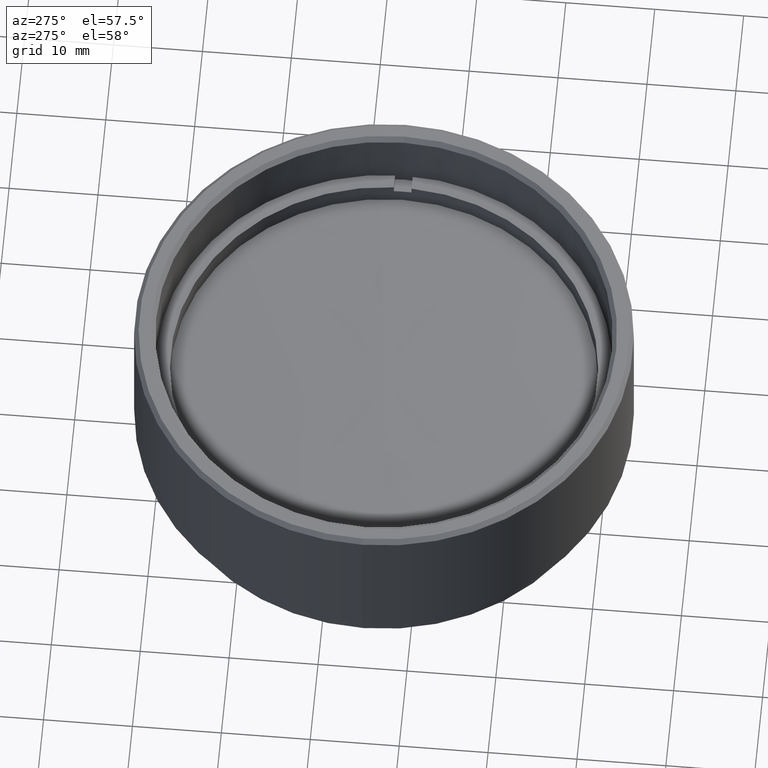
[diagram: clean part render]
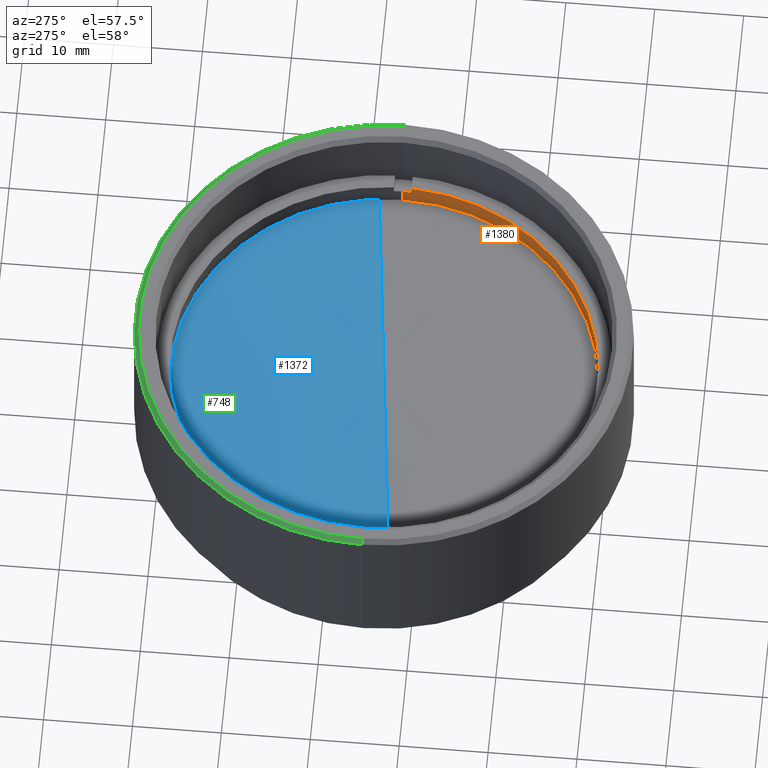
[diagram: same view with three faces highlighted in distinct colors, each labeled with its STEP entity id]
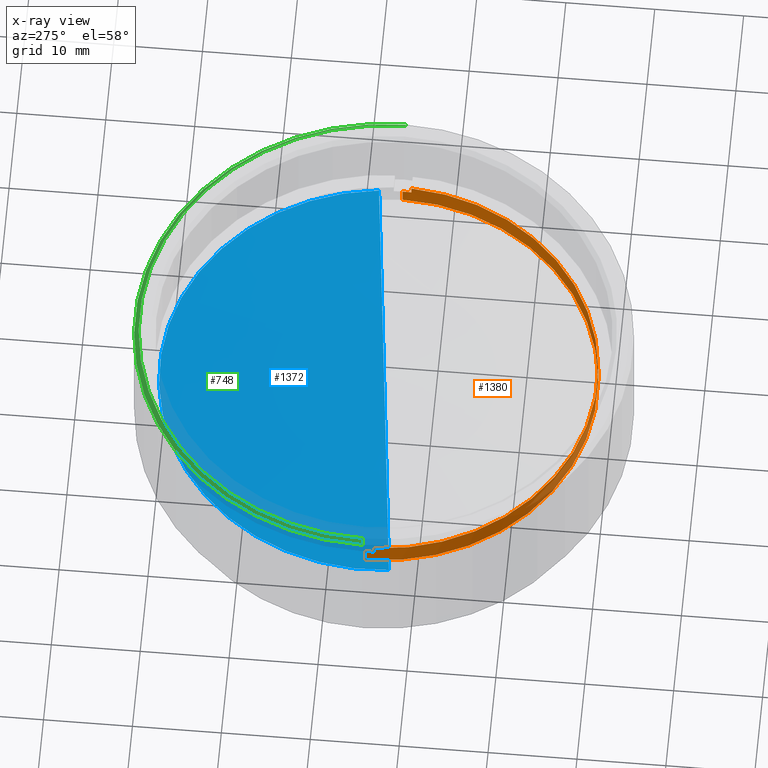
[diagram: x-ray of the same camera — body ghosted, the three highlighted faces saturated]
A machine part, auxiliary view with three faces highlighted in distinct colors.
The next image is the same camera in x-ray (body ghosted, the three faces saturated) — at least one of them is partly hidden behind the body in this view.
Their STEP definitions:

[orange] entity #1380 — the highlighted cylindrical surface (partial cylindrical patch) has radius 24 mm, axis along (-0, -0, -1).
#4 = VERTEX_POINT ( 'NONE', #954 ) ;
#46 = CIRCLE ( 'NONE', #1032, 24.00000000000000355 ) ;
#65 = DIRECTION ( 'NONE',  ( -0.000000000000000000, -0.000000000000000000, -1.000000000000000000 ) ) ;
#66 = EDGE_CURVE ( 'NONE', #510, #1404, #560, .T. ) ;
#72 = AXIS2_PLACEMENT_3D ( 'NONE', #1037, #1728, #503 ) ;
#128 = CARTESIAN_POINT ( 'NONE',  ( 23.97915761656360445, -1.000000000000000000, 2.500000000000000000 ) ) ;
#191 = DIRECTION ( 'NONE',  ( 1.000000000000000000, 0.000000000000000000, 0.000000000000000000 ) ) ;
#222 = DIRECTION ( 'NONE',  ( -0.000000000000000000, 0.000000000000000000, 1.000000000000000000 ) ) ;
#258 = DIRECTION ( 'NONE',  ( 0.000000000000000000, 0.000000000000000000, 1.000000000000000000 ) ) ;
#272 = VERTEX_POINT ( 'NONE', #1457 ) ;
#280 = ORIENTED_EDGE ( 'NONE', *, *, #1731, .F. ) ;
#318 = ORIENTED_EDGE ( 'NONE', *, *, #1302, .T. ) ;
#331 = VERTEX_POINT ( 'NONE', #1148 ) ;
#337 = AXIS2_PLACEMENT_3D ( 'NONE', #878, #895, #191 ) ;
#347 = EDGE_CURVE ( 'NONE', #510, #272, #939, .T. ) ;
#375 = CARTESIAN_POINT ( 'NONE',  ( -24.00000000000000355, 0.000000000000000000, 1.700000000000000178 ) ) ;
#380 = ORIENTED_EDGE ( 'NONE', *, *, #66, .F. ) ;
#389 = CARTESIAN_POINT ( 'NONE',  ( -23.97915761656360445, -1.000000000000000000, 1.700000000000000178 ) ) ;
#409 = VECTOR ( 'NONE', #659, 1000.000000000000000 ) ;
#418 = LINE ( 'NONE', #1284, #615 ) ;
#465 = ORIENTED_EDGE ( 'NONE', *, *, #1641, .T. ) ;
#503 = DIRECTION ( 'NONE',  ( 1.000000000000000000, 0.000000000000000000, 0.000000000000000000 ) ) ;
#505 = DIRECTION ( 'NONE',  ( -0.000000000000000000, -0.000000000000000000, -1.000000000000000000 ) ) ;
#510 = VERTEX_POINT ( 'NONE', #973 ) ;
#560 = LINE ( 'NONE', #1508, #1491 ) ;
#567 = EDGE_CURVE ( 'NONE', #1465, #625, #46, .T. ) ;
#615 = VECTOR ( 'NONE', #65, 1000.000000000000000 ) ;
#625 = VERTEX_POINT ( 'NONE', #389 ) ;
#635 = DIRECTION ( 'NONE',  ( 1.000000000000000000, 0.000000000000000000, 0.000000000000000000 ) ) ;
#659 = DIRECTION ( 'NONE',  ( -0.000000000000000000, -0.000000000000000000, -1.000000000000000000 ) ) ;
#762 = CARTESIAN_POINT ( 'NONE',  ( 0.000000000000000000, 0.000000000000000000, 1.700000000000000178 ) ) ;
#774 = ORIENTED_EDGE ( 'NONE', *, *, #347, .T. ) ;
#792 = DIRECTION ( 'NONE',  ( 1.000000000000000000, 0.000000000000000000, 0.000000000000000000 ) ) ;
#811 = CARTESIAN_POINT ( 'NONE',  ( 24.00000000000000355, 2.939152317953648289E-15, 2.500000000000000000 ) ) ;
#867 = EDGE_CURVE ( 'NONE', #1465, #331, #418, .T. ) ;
#878 = CARTESIAN_POINT ( 'NONE',  ( 0.000000000000000000, 0.000000000000000000, 2.500000000000000000 ) ) ;
#895 = DIRECTION ( 'NONE',  ( 0.000000000000000000, 0.000000000000000000, 1.000000000000000000 ) ) ;
#898 = LINE ( 'NONE', #1577, #1069 ) ;
#905 = DIRECTION ( 'NONE',  ( -0.000000000000000000, -0.000000000000000000, -1.000000000000000000 ) ) ;
#936 = CYLINDRICAL_SURFACE ( 'NONE', #1287, 24.00000000000000355 ) ;
#939 = CIRCLE ( 'NONE', #72, 24.00000000000000355 ) ;
#954 = CARTESIAN_POINT ( 'NONE',  ( -23.97915761656360445, -1.000000000000000000, 2.500000000000000000 ) ) ;
#973 = CARTESIAN_POINT ( 'NONE',  ( 23.97915761656360445, -1.000000000000000000, 1.700000000000000178 ) ) ;
#985 = EDGE_CURVE ( 'NONE', #4, #625, #898, .T. ) ;
#1032 = AXIS2_PLACEMENT_3D ( 'NONE', #762, #222, #635 ) ;
#1037 = CARTESIAN_POINT ( 'NONE',  ( 0.000000000000000000, 0.000000000000000000, 1.700000000000000178 ) ) ;
#1069 = VECTOR ( 'NONE', #905, 1000.000000000000000 ) ;
#1075 = CARTESIAN_POINT ( 'NONE',  ( 0.000000000000000000, 0.000000000000000000, 2.500000000000000000 ) ) ;
#1148 = CARTESIAN_POINT ( 'NONE',  ( -24.00000000000000355, 0.000000000000000000, 0.000000000000000000 ) ) ;
#1192 = CIRCLE ( 'NONE', #337, 24.00000000000000355 ) ;
#1221 = ORIENTED_EDGE ( 'NONE', *, *, #567, .T. ) ;
#1255 = DIRECTION ( 'NONE',  ( 0.000000000000000000, 0.000000000000000000, 1.000000000000000000 ) ) ;
#1284 = CARTESIAN_POINT ( 'NONE',  ( -24.00000000000000355, 0.000000000000000000, 2.500000000000000000 ) ) ;
#1287 = AXIS2_PLACEMENT_3D ( 'NONE', #1075, #505, #1730 ) ;
#1302 = EDGE_CURVE ( 'NONE', #4, #1404, #1192, .T. ) ;
#1335 = EDGE_LOOP ( 'NONE', ( #774, #465, #280, #1727, #1221, #1386, #318, #380 ) ) ;
#1338 = FACE_OUTER_BOUND ( 'NONE', #1335, .T. ) ;
#1340 = LINE ( 'NONE', #811, #409 ) ;
#1380 = ADVANCED_FACE ( 'NONE', ( #1338 ), #936, .F. ) ;
#1386 = ORIENTED_EDGE ( 'NONE', *, *, #985, .F. ) ;
#1404 = VERTEX_POINT ( 'NONE', #128 ) ;
#1457 = CARTESIAN_POINT ( 'NONE',  ( 24.00000000000000355, 2.939152317953648289E-15, 1.700000000000000178 ) ) ;
#1465 = VERTEX_POINT ( 'NONE', #375 ) ;
#1487 = CARTESIAN_POINT ( 'NONE',  ( 0.000000000000000000, 0.000000000000000000, 0.000000000000000000 ) ) ;
#1491 = VECTOR ( 'NONE', #1255, 1000.000000000000000 ) ;
#1498 = AXIS2_PLACEMENT_3D ( 'NONE', #1487, #258, #792 ) ;
#1508 = CARTESIAN_POINT ( 'NONE',  ( 23.97915761656360445, -1.000000000000000000, 2.500000000000000000 ) ) ;
#1557 = VERTEX_POINT ( 'NONE', #1633 ) ;
#1577 = CARTESIAN_POINT ( 'NONE',  ( -23.97915761656360445, -1.000000000000000000, 2.500000000000000000 ) ) ;
#1633 = CARTESIAN_POINT ( 'NONE',  ( 24.00000000000000355, 2.939152317953648289E-15, 0.000000000000000000 ) ) ;
#1641 = EDGE_CURVE ( 'NONE', #272, #1557, #1340, .T. ) ;
#1676 = CIRCLE ( 'NONE', #1498, 24.00000000000000355 ) ;
#1727 = ORIENTED_EDGE ( 'NONE', *, *, #867, .F. ) ;
#1728 = DIRECTION ( 'NONE',  ( -0.000000000000000000, 0.000000000000000000, 1.000000000000000000 ) ) ;
#1730 = DIRECTION ( 'NONE',  ( -1.000000000000000000, 0.000000000000000000, 0.000000000000000000 ) ) ;
#1731 = EDGE_CURVE ( 'NONE', #331, #1557, #1676, .T. ) ;

[blue] entity #1372 — the highlighted spherical surface has radius 272.9 mm.
#32 = ORIENTED_EDGE ( 'NONE', *, *, #1514, .T. ) ;
#101 = VERTEX_POINT ( 'NONE', #1489 ) ;
#211 = DIRECTION ( 'NONE',  ( 0.000000000000000000, -0.000000000000000000, 1.000000000000000000 ) ) ;
#241 = DIRECTION ( 'NONE',  ( -9.458320266173338774E-17, 0.000000000000000000, 1.000000000000000000 ) ) ;
#255 = CARTESIAN_POINT ( 'NONE',  ( 0.000000000000000000, 0.000000000000000000, -272.8999999999999773 ) ) ;
#264 = DIRECTION ( 'NONE',  ( 0.000000000000000000, -1.000000000000000000, 0.000000000000000000 ) ) ;
#441 = CIRCLE ( 'NONE', #758, 272.8999999999999773 ) ;
#532 = CARTESIAN_POINT ( 'NONE',  ( -2.662208646811449869E-14, 0.000000000000000000, -1.167708629848718038 ) ) ;
#758 = AXIS2_PLACEMENT_3D ( 'NONE', #255, #264, #1365 ) ;
#760 = DIRECTION ( 'NONE',  ( -1.000000000000000000, 0.000000000000000000, 0.000000000000000000 ) ) ;
#877 = VERTEX_POINT ( 'NONE', #1138 ) ;
#901 = DIRECTION ( 'NONE',  ( -1.000000000000000000, 0.000000000000000000, -9.458320266173346170E-17 ) ) ;
#997 = AXIS2_PLACEMENT_3D ( 'NONE', #1440, #211, #760 ) ;
#1015 = CIRCLE ( 'NONE', #1305, 25.21848184818480121 ) ;
#1138 = CARTESIAN_POINT ( 'NONE',  ( -25.21848184818485095, 0.000000000000000000, -1.167708629848720037 ) ) ;
#1280 = SPHERICAL_SURFACE ( 'NONE', #997, 272.8999999999999773 ) ;
#1290 = EDGE_LOOP ( 'NONE', ( #1733, #32 ) ) ;
#1291 = FACE_OUTER_BOUND ( 'NONE', #1290, .T. ) ;
#1305 = AXIS2_PLACEMENT_3D ( 'NONE', #532, #241, #901 ) ;
#1365 = DIRECTION ( 'NONE',  ( 0.000000000000000000, 0.000000000000000000, -1.000000000000000000 ) ) ;
#1372 = ADVANCED_FACE ( 'NONE', ( #1291 ), #1280, .T. ) ;
#1440 = CARTESIAN_POINT ( 'NONE',  ( 0.000000000000000000, 0.000000000000000000, -272.8999999999999773 ) ) ;
#1489 = CARTESIAN_POINT ( 'NONE',  ( 25.21848184818480121, 3.099488088653895000E-15, -1.167708629848716040 ) ) ;
#1514 = EDGE_CURVE ( 'NONE', #101, #877, #1015, .T. ) ;
#1599 = EDGE_CURVE ( 'NONE', #101, #877, #441, .T. ) ;
#1733 = ORIENTED_EDGE ( 'NONE', *, *, #1599, .F. ) ;

[green] entity #748 — the highlighted conical surface has half-angle 45 deg.
#55 = AXIS2_PLACEMENT_3D ( 'NONE', #1643, #522, #1374 ) ;
#159 = DIRECTION ( 'NONE',  ( 0.000000000000000000, 0.000000000000000000, -1.000000000000000000 ) ) ;
#190 = ORIENTED_EDGE ( 'NONE', *, *, #1692, .F. ) ;
#268 = VERTEX_POINT ( 'NONE', #1166 ) ;
#311 = DIRECTION ( 'NONE',  ( -1.000000000000000000, 0.000000000000000000, 0.000000000000000000 ) ) ;
#321 = ORIENTED_EDGE ( 'NONE', *, *, #483, .F. ) ;
#371 = VECTOR ( 'NONE', #570, 1000.000000000000000 ) ;
#458 = CONICAL_SURFACE ( 'NONE', #1460, 27.49999999999998579, 0.7853981633974587151 ) ;
#460 = ORIENTED_EDGE ( 'NONE', *, *, #715, .T. ) ;
#478 = EDGE_LOOP ( 'NONE', ( #607, #460, #190, #321 ) ) ;
#483 = EDGE_CURVE ( 'NONE', #1493, #268, #701, .T. ) ;
#522 = DIRECTION ( 'NONE',  ( 0.000000000000000000, 0.000000000000000000, -1.000000000000000000 ) ) ;
#535 = CARTESIAN_POINT ( 'NONE',  ( 0.000000000000000000, 0.000000000000000000, 21.50000000000000000 ) ) ;
#544 = VERTEX_POINT ( 'NONE', #1268 ) ;
#570 = DIRECTION ( 'NONE',  ( -0.7071067811865549002, 0.000000000000000000, -0.7071067811865401342 ) ) ;
#607 = ORIENTED_EDGE ( 'NONE', *, *, #1029, .F. ) ;
#701 = LINE ( 'NONE', #1247, #371 ) ;
#715 = EDGE_CURVE ( 'NONE', #1204, #544, #1091, .T. ) ;
#722 = CARTESIAN_POINT ( 'NONE',  ( 27.49999999999998579, 3.398394867633904700E-15, 21.50000000000000000 ) ) ;
#748 = ADVANCED_FACE ( 'NONE', ( #1755 ), #458, .T. ) ;
#823 = DIRECTION ( 'NONE',  ( 0.7071067811865549002, 8.659560562355022838E-17, -0.7071067811865401342 ) ) ;
#986 = CIRCLE ( 'NONE', #1390, 27.49999999999998579 ) ;
#1019 = DIRECTION ( 'NONE',  ( 0.000000000000000000, 0.000000000000000000, 1.000000000000000000 ) ) ;
#1029 = EDGE_CURVE ( 'NONE', #1204, #1493, #986, .T. ) ;
#1043 = CARTESIAN_POINT ( 'NONE',  ( 0.000000000000000000, 0.000000000000000000, 21.50000000000000000 ) ) ;
#1091 = LINE ( 'NONE', #1466, #1742 ) ;
#1166 = CARTESIAN_POINT ( 'NONE',  ( -28.00000000000000000, 0.000000000000000000, 20.99999999999999289 ) ) ;
#1181 = CIRCLE ( 'NONE', #55, 28.00000000000000000 ) ;
#1204 = VERTEX_POINT ( 'NONE', #722 ) ;
#1247 = CARTESIAN_POINT ( 'NONE',  ( -27.49999999999998579, 0.000000000000000000, 21.50000000000000000 ) ) ;
#1268 = CARTESIAN_POINT ( 'NONE',  ( 28.00000000000000000, 3.429011037612589276E-15, 20.99999999999999289 ) ) ;
#1325 = CARTESIAN_POINT ( 'NONE',  ( -27.49999999999998579, 0.000000000000000000, 21.50000000000000000 ) ) ;
#1374 = DIRECTION ( 'NONE',  ( 1.000000000000000000, 0.000000000000000000, 0.000000000000000000 ) ) ;
#1390 = AXIS2_PLACEMENT_3D ( 'NONE', #1043, #1019, #1451 ) ;
#1451 = DIRECTION ( 'NONE',  ( 1.000000000000000000, 0.000000000000000000, 0.000000000000000000 ) ) ;
#1460 = AXIS2_PLACEMENT_3D ( 'NONE', #535, #159, #311 ) ;
#1466 = CARTESIAN_POINT ( 'NONE',  ( 27.49999999999998579, 3.367778697655219730E-15, 21.50000000000000000 ) ) ;
#1493 = VERTEX_POINT ( 'NONE', #1325 ) ;
#1643 = CARTESIAN_POINT ( 'NONE',  ( 0.000000000000000000, 0.000000000000000000, 20.99999999999999289 ) ) ;
#1692 = EDGE_CURVE ( 'NONE', #268, #544, #1181, .T. ) ;
#1742 = VECTOR ( 'NONE', #823, 1000.000000000000000 ) ;
#1755 = FACE_OUTER_BOUND ( 'NONE', #478, .T. ) ;